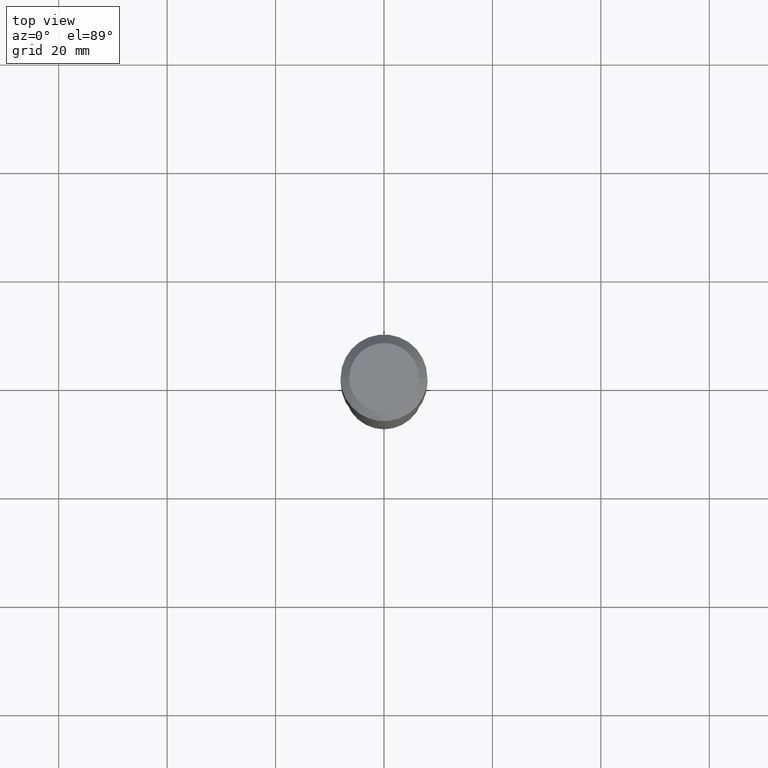
[diagram: clean part render]
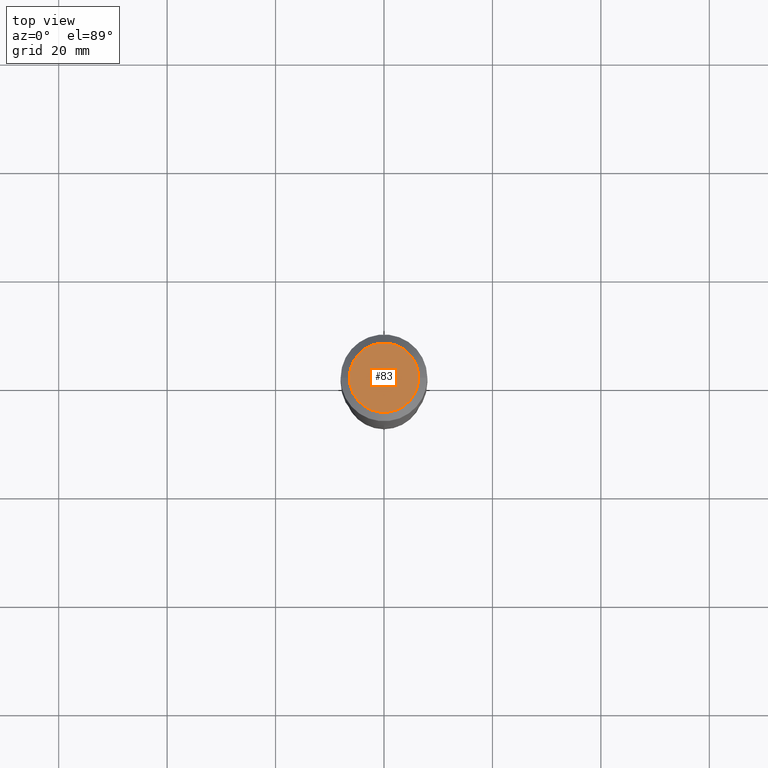
[diagram: same view with one face highlighted and labeled with its STEP entity id]
A machine part, top view. The second image highlights one B-rep face of the part: STEP entity #83.
In plain terms, the highlighted planar face has unit normal (0, -0, -1).
Its self-contained STEP definition (entity closure, byte-faithful):
#23 = AXIS2_PLACEMENT_3D ( 'NONE', #269, #485, #121 ) ;
#43 = CARTESIAN_POINT ( 'NONE',  ( -0.2519600000000000173, 1.869391481036695286E-15, 3.855188123703182704E-18 ) ) ;
#61 = AXIS2_PLACEMENT_3D ( 'NONE', #358, #166, #321 ) ;
#81 = ORIENTED_EDGE ( 'NONE', *, *, #219, .T. ) ;
#83 = ADVANCED_FACE ( 'NONE', ( #211 ), #420, .F. ) ;
#121 = DIRECTION ( 'NONE',  ( 1.000000000000000000, -6.982962677686266711E-15, 4.876115136096691995E-29 ) ) ;
#163 = CARTESIAN_POINT ( 'NONE',  ( -4.713871149261284790E-47, 6.730158695841843144E-33, 1.927594061857935750E-18 ) ) ;
#166 = DIRECTION ( 'NONE',  ( -2.445468806185136597E-29, 3.491481338843145583E-15, 1.000000000000000000 ) ) ;
#168 = DIRECTION ( 'NONE',  ( 2.438088387897960049E-29, -3.491481338843145188E-15, -1.000000000000000000 ) ) ;
#181 = ORIENTED_EDGE ( 'NONE', *, *, #461, .T. ) ;
#211 = FACE_OUTER_BOUND ( 'NONE', #259, .T. ) ;
#219 = EDGE_CURVE ( 'NONE', #415, #478, #224, .T. ) ;
#224 = CIRCLE ( 'NONE', #61, 0.2519600000000000173 ) ;
#259 = EDGE_LOOP ( 'NONE', ( #81, #181 ) ) ;
#269 = CARTESIAN_POINT ( 'NONE',  ( -9.427742298522569579E-47, 1.346031739168368629E-32, 3.855188123715871501E-18 ) ) ;
#296 = AXIS2_PLACEMENT_3D ( 'NONE', #163, #168, #327 ) ;
#321 = DIRECTION ( 'NONE',  ( 1.000000000000000000, -6.982962677686266711E-15, 4.876115136096691995E-29 ) ) ;
#327 = DIRECTION ( 'NONE',  ( -1.000000000000000000, 6.982962677686265922E-15, -4.876176775795935793E-29 ) ) ;
#335 = CIRCLE ( 'NONE', #23, 0.2519600000000000173 ) ;
#358 = CARTESIAN_POINT ( 'NONE',  ( -9.427742298522569579E-47, 1.346031739168368629E-32, 3.855188123715871501E-18 ) ) ;
#387 = CARTESIAN_POINT ( 'NONE',  ( 0.2519600000000000173, -2.054606664725195058E-15, 3.855188123729206640E-18 ) ) ;
#415 = VERTEX_POINT ( 'NONE', #43 ) ;
#420 = PLANE ( 'NONE',  #296 ) ;
#461 = EDGE_CURVE ( 'NONE', #478, #415, #335, .T. ) ;
#478 = VERTEX_POINT ( 'NONE', #387 ) ;
#485 = DIRECTION ( 'NONE',  ( -2.445468806185136597E-29, 3.491481338843145583E-15, 1.000000000000000000 ) ) ;